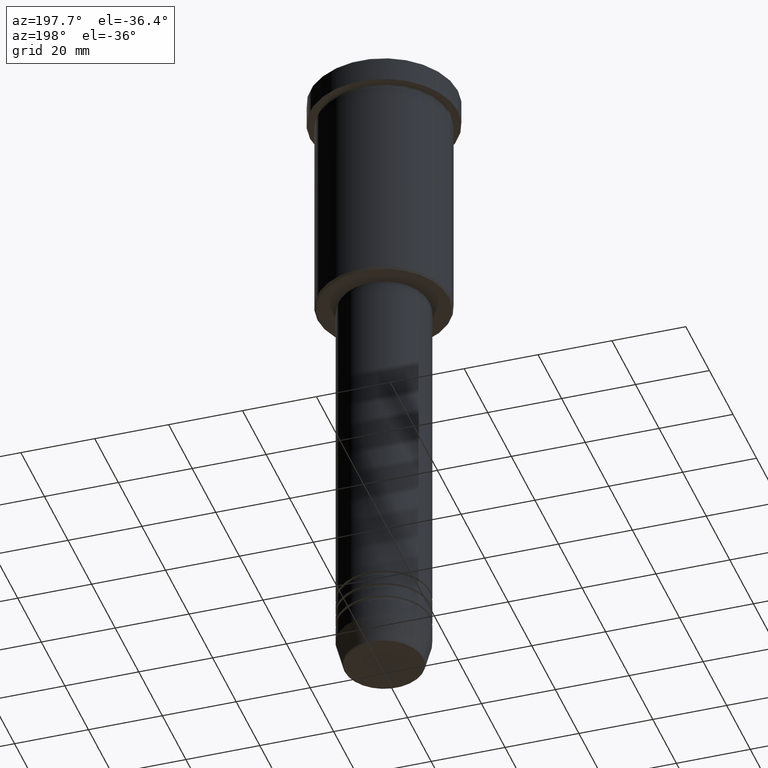
[diagram: clean part render]
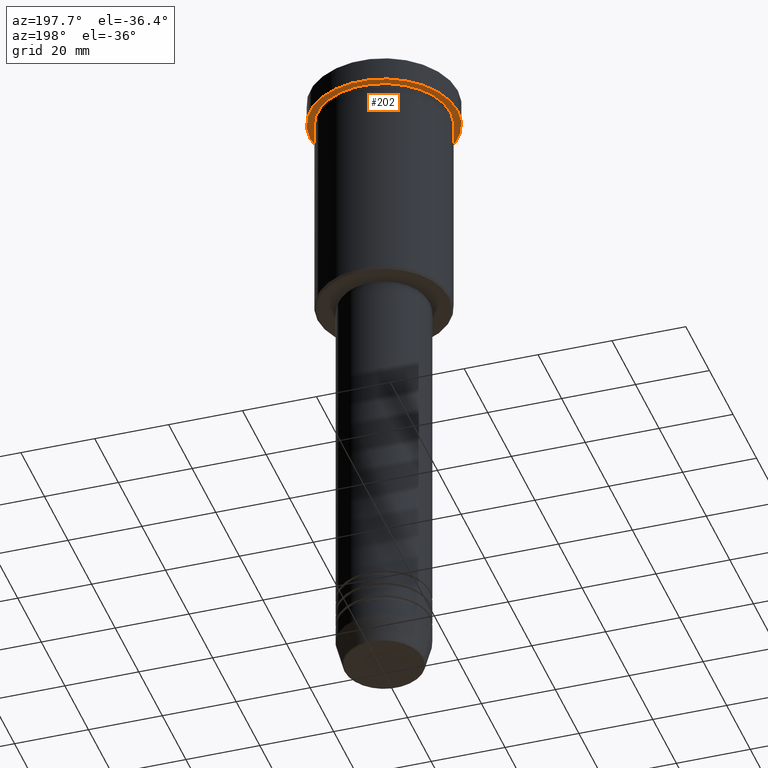
[diagram: same view with one face highlighted and labeled with its STEP entity id]
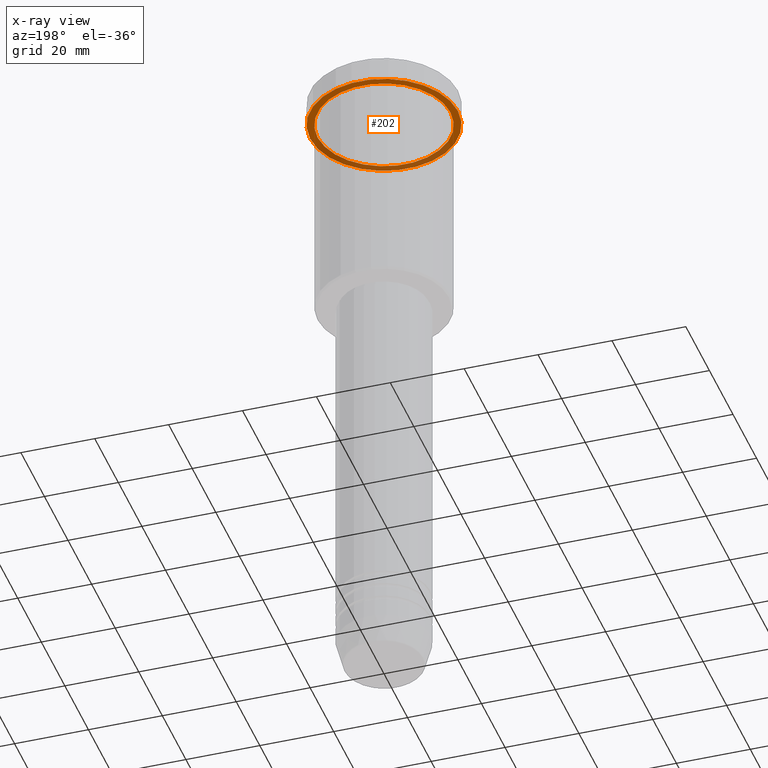
[diagram: x-ray of the same camera — body ghosted, the highlighted face saturated]
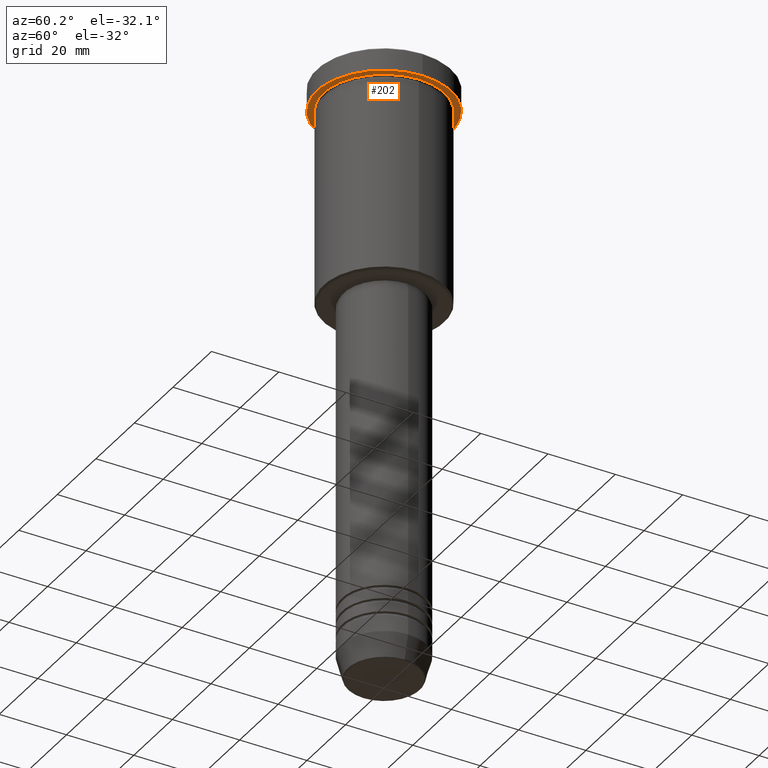
[diagram: same view with one face highlighted and labeled with its STEP entity id]
A machine part, auxiliary view. The second image highlights one B-rep face of the part: STEP entity #202.
The next image is the same camera in x-ray: the body ghosted, the highlighted face saturated — about 35% of this face is hidden behind the body in this view.
A second angle (auxiliary view) of the same face is appended — the face is thin or edge-on in the first view.
In plain terms, the highlighted planar face has unit normal (0, 0, -1).
Its self-contained STEP definition (entity closure, byte-faithful):
#35 = CIRCLE ( 'NONE', #1105, 20.00000000000000000 ) ;
#65 = DIRECTION ( 'NONE',  ( -0.000000000000000000, -0.000000000000000000, 1.000000000000000000 ) ) ;
#75 = AXIS2_PLACEMENT_3D ( 'NONE', #811, #1147, #337 ) ;
#92 = CIRCLE ( 'NONE', #75, 18.00000000000000000 ) ;
#157 = ORIENTED_EDGE ( 'NONE', *, *, #841, .F. ) ;
#202 = ADVANCED_FACE ( 'NONE', ( #405, #690 ), #1053, .T. ) ;
#235 = CARTESIAN_POINT ( 'NONE',  ( 0.000000000000000000, 20.00000000000000000, -6.999999999999995559 ) ) ;
#286 = CIRCLE ( 'NONE', #822, 20.00000000000000000 ) ;
#337 = DIRECTION ( 'NONE',  ( -1.000000000000000000, 0.000000000000000000, 0.000000000000000000 ) ) ;
#377 = DIRECTION ( 'NONE',  ( 1.000000000000000000, 0.000000000000000000, 0.000000000000000000 ) ) ;
#395 = CARTESIAN_POINT ( 'NONE',  ( -18.00000000000000000, 0.000000000000000000, -6.999999999999995559 ) ) ;
#405 = FACE_BOUND ( 'NONE', #789, .T. ) ;
#425 = CARTESIAN_POINT ( 'NONE',  ( 0.000000000000000000, 0.000000000000000000, -6.999999999999995559 ) ) ;
#429 = DIRECTION ( 'NONE',  ( -1.000000000000000000, 0.000000000000000000, 0.000000000000000000 ) ) ;
#460 = CIRCLE ( 'NONE', #1069, 18.00000000000000000 ) ;
#484 = CARTESIAN_POINT ( 'NONE',  ( 20.00000000000000000, 0.000000000000000000, -6.999999999999995559 ) ) ;
#524 = CARTESIAN_POINT ( 'NONE',  ( -20.00000000000000000, 2.449293598294706513E-15, -6.999999999999995559 ) ) ;
#593 = ORIENTED_EDGE ( 'NONE', *, *, #1003, .T. ) ;
#601 = VERTEX_POINT ( 'NONE', #395 ) ;
#604 = DIRECTION ( 'NONE',  ( 0.000000000000000000, 0.000000000000000000, -1.000000000000000000 ) ) ;
#636 = VERTEX_POINT ( 'NONE', #484 ) ;
#637 = DIRECTION ( 'NONE',  ( -0.000000000000000000, -0.000000000000000000, 1.000000000000000000 ) ) ;
#690 = FACE_OUTER_BOUND ( 'NONE', #887, .T. ) ;
#716 = CARTESIAN_POINT ( 'NONE',  ( 18.00000000000000000, 2.204364238465235428E-15, -6.999999999999995559 ) ) ;
#748 = EDGE_CURVE ( 'NONE', #1146, #601, #92, .T. ) ;
#762 = DIRECTION ( 'NONE',  ( -1.000000000000000000, 0.000000000000000000, -0.000000000000000000 ) ) ;
#789 = EDGE_LOOP ( 'NONE', ( #593, #944 ) ) ;
#811 = CARTESIAN_POINT ( 'NONE',  ( 0.000000000000000000, 0.000000000000000000, -6.999999999999995559 ) ) ;
#822 = AXIS2_PLACEMENT_3D ( 'NONE', #984, #65, #897 ) ;
#837 = CARTESIAN_POINT ( 'NONE',  ( 0.000000000000000000, 0.000000000000000000, -6.999999999999995559 ) ) ;
#841 = EDGE_CURVE ( 'NONE', #636, #1178, #286, .T. ) ;
#887 = EDGE_LOOP ( 'NONE', ( #157, #1090 ) ) ;
#897 = DIRECTION ( 'NONE',  ( 1.000000000000000000, 0.000000000000000000, 0.000000000000000000 ) ) ;
#908 = EDGE_CURVE ( 'NONE', #1178, #636, #35, .T. ) ;
#944 = ORIENTED_EDGE ( 'NONE', *, *, #748, .T. ) ;
#963 = DIRECTION ( 'NONE',  ( -0.000000000000000000, -0.000000000000000000, 1.000000000000000000 ) ) ;
#965 = AXIS2_PLACEMENT_3D ( 'NONE', #235, #604, #762 ) ;
#984 = CARTESIAN_POINT ( 'NONE',  ( 0.000000000000000000, 0.000000000000000000, -6.999999999999995559 ) ) ;
#1003 = EDGE_CURVE ( 'NONE', #601, #1146, #460, .T. ) ;
#1053 = PLANE ( 'NONE',  #965 ) ;
#1069 = AXIS2_PLACEMENT_3D ( 'NONE', #425, #963, #429 ) ;
#1090 = ORIENTED_EDGE ( 'NONE', *, *, #908, .F. ) ;
#1105 = AXIS2_PLACEMENT_3D ( 'NONE', #837, #637, #377 ) ;
#1146 = VERTEX_POINT ( 'NONE', #716 ) ;
#1147 = DIRECTION ( 'NONE',  ( -0.000000000000000000, -0.000000000000000000, 1.000000000000000000 ) ) ;
#1178 = VERTEX_POINT ( 'NONE', #524 ) ;